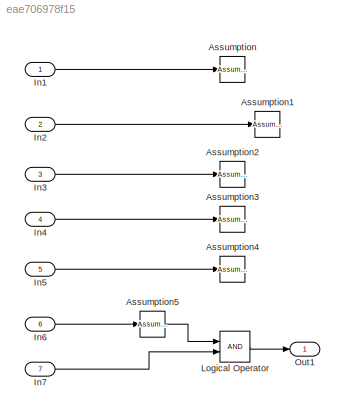
MODEL slx_eae706978f15
KIND model
CONFIG AbsTol = auto
CONFIG EnableMultiTasking = off
CONFIG FixedStep = 0.200000
CONFIG MaxStep = auto
CONFIG MinStep = auto
CONFIG RelTol = 1e-3
CONFIG SampleTimeConstraint = Unconstrained
CONFIG Solver = FixedStepDiscrete
CONFIG SolverName = FixedStepDiscrete
CONFIG StartTime = 0.0
CONFIG StopTime = 10.0
BLOCK [Reference] Assumption  REF=sldvlib/Objectives and Constraints/Assumption
  AttributesFormatString = %<intervals>
  Ports = [1]
  SourceBlock = sldvlib/Objectives and Constraints/Assumption
  SourceProductBaseCode = DV
  SourceProductName = Simulink Design Verifier
  SourceType = Design Verifier Assumption
BLOCK [Reference] Assumption1  REF=sldvlib/Objectives and Constraints/Assumption
  AttributesFormatString = %<intervals>
  Ports = [1]
  SourceBlock = sldvlib/Objectives and Constraints/Assumption
  SourceProductBaseCode = DV
  SourceProductName = Simulink Design Verifier
  SourceType = Design Verifier Assumption
BLOCK [Reference] Assumption2  REF=sldvlib/Objectives and Constraints/Assumption
  AttributesFormatString = %<intervals>
  Ports = [1]
  SourceBlock = sldvlib/Objectives and Constraints/Assumption
  SourceProductBaseCode = DV
  SourceProductName = Simulink Design Verifier
  SourceType = Design Verifier Assumption
BLOCK [Reference] Assumption3  REF=sldvlib/Objectives and Constraints/Assumption
  AttributesFormatString = %<intervals>
  Ports = [1]
  SourceBlock = sldvlib/Objectives and Constraints/Assumption
  SourceProductBaseCode = DV
  SourceProductName = Simulink Design Verifier
  SourceType = Design Verifier Assumption
BLOCK [Reference] Assumption4  REF=sldvlib/Objectives and Constraints/Assumption
  AttributesFormatString = %<intervals>
  Ports = [1]
  SourceBlock = sldvlib/Objectives and Constraints/Assumption
  SourceProductBaseCode = DV
  SourceProductName = Simulink Design Verifier
  SourceType = Design Verifier Assumption
BLOCK [Reference] Assumption5  REF=sldvlib/Objectives and Constraints/Assumption
  AttributesFormatString = %<intervals>
  Ports = [1, 1]
  SourceBlock = sldvlib/Objectives and Constraints/Assumption
  SourceProductBaseCode = DV
  SourceProductName = Simulink Design Verifier
  SourceType = Design Verifier Assumption
BLOCK [Inport] In1
  IconDisplay = Port number
  PortDimensions = 2
BLOCK [Inport] In2
  IconDisplay = Port number
  Port = 2
BLOCK [Inport] In3
  IconDisplay = Port number
  Port = 3
BLOCK [Inport] In4
  IconDisplay = Port number
  Port = 4
  PortDimensions = 4
BLOCK [Inport] In5
  IconDisplay = Port number
  Port = 5
BLOCK [Inport] In6
  IconDisplay = Port number
  OutDataTypeStr = boolean
  Port = 6
BLOCK [Inport] In7
  IconDisplay = Port number
  OutDataTypeStr = boolean
  Port = 7
BLOCK [Logic] Logical Operator
  AllPortsSameDT = off
  OutDataTypeStr = boolean
  Ports = [2, 1]
BLOCK [Outport] Out1
  IconDisplay = Port number
LINE Assumption5:1 -> Logical Operator:1
LINE In1:1 -> Assumption:1
LINE In2:1 -> Assumption1:1
LINE In3:1 -> Assumption2:1
LINE In4:1 -> Assumption3:1
LINE In5:1 -> Assumption4:1
LINE In6:1 -> Assumption5:1
LINE In7:1 -> Logical Operator:2
LINE Logical Operator:1 -> Out1:1
